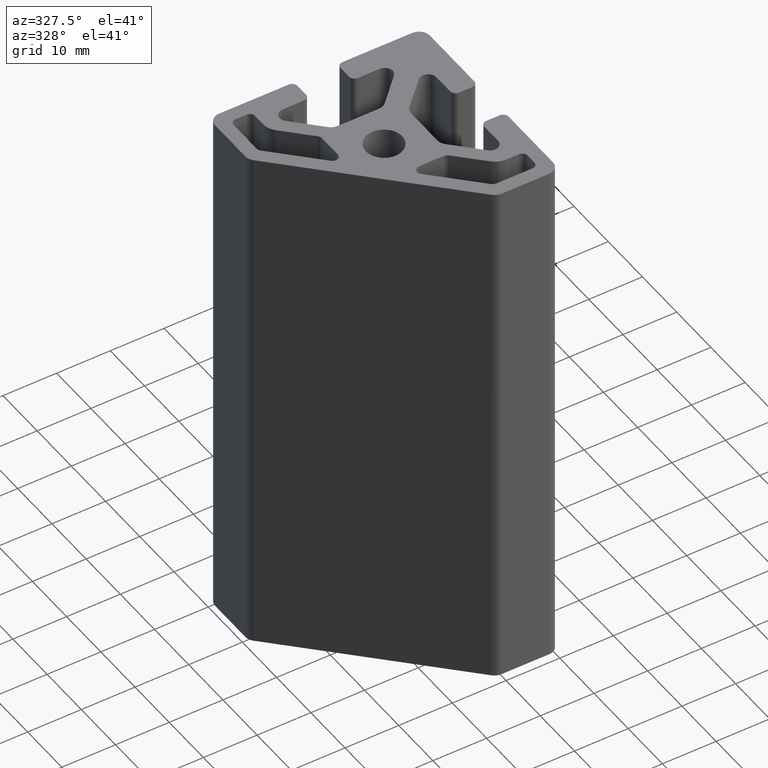
[diagram: clean part render]
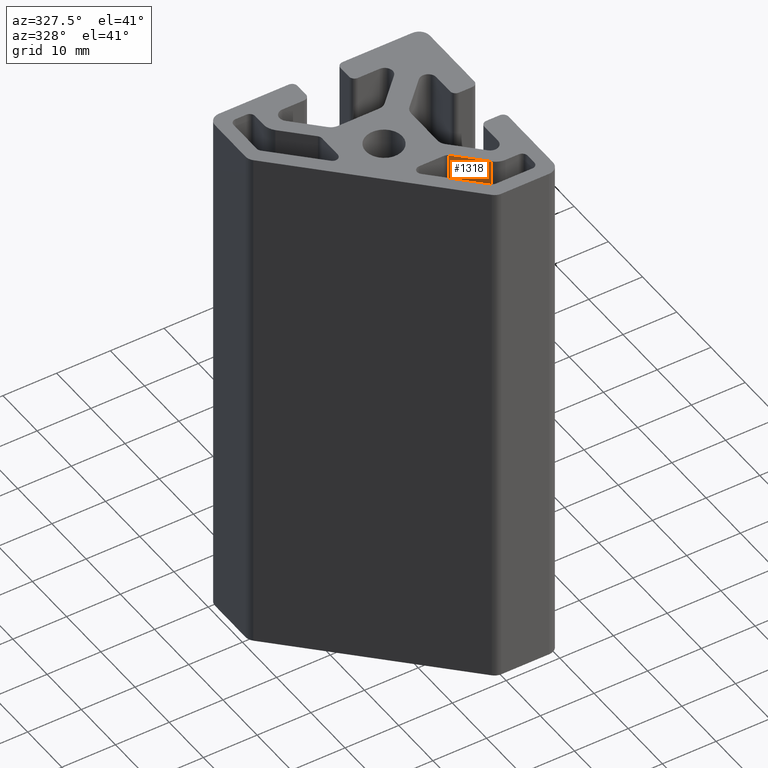
[diagram: same view with one face highlighted and labeled with its STEP entity id]
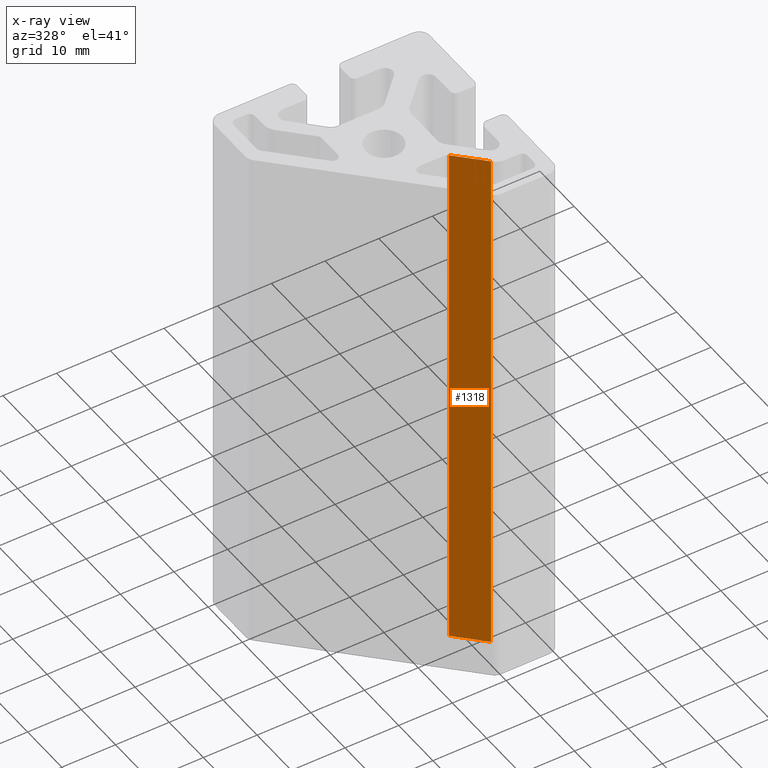
[diagram: x-ray of the same camera — body ghosted, the highlighted face saturated]
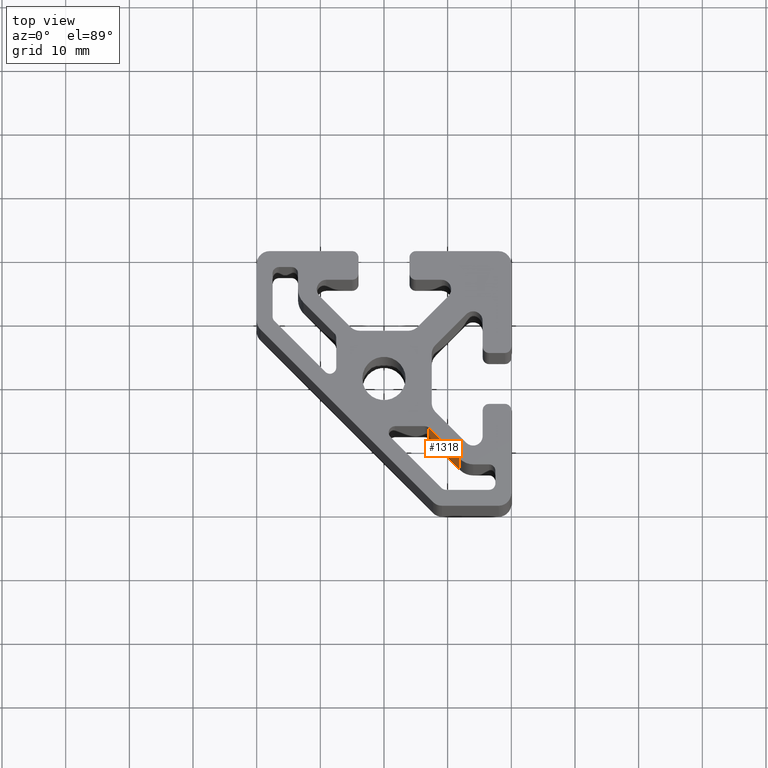
[diagram: same view with one face highlighted and labeled with its STEP entity id]
A machine part, auxiliary view. The second image highlights one B-rep face of the part: STEP entity #1318.
The next image is the same camera in x-ray: the body ghosted, the highlighted face saturated — about 0% of this face is hidden behind the body in this view.
A second angle (top view) of the same face is appended — the face is thin or edge-on in the first view.
In plain terms, the highlighted planar face has unit normal (0.7071, 0.7071, 0).
Its self-contained STEP definition (entity closure, byte-faithful):
#140=FACE_OUTER_BOUND('',#209,.T.);
#209=EDGE_LOOP('',(#931,#932,#933,#934));
#301=LINE('',#2016,#433);
#302=LINE('',#2020,#434);
#303=LINE('',#2022,#435);
#304=LINE('',#2023,#436);
#433=VECTOR('',#1606,100.);
#434=VECTOR('',#1611,6.8284271247462);
#435=VECTOR('',#1612,100.);
#436=VECTOR('',#1613,6.8284271247462);
#565=VERTEX_POINT('',#2013);
#566=VERTEX_POINT('',#2015);
#567=VERTEX_POINT('',#2019);
#568=VERTEX_POINT('',#2021);
#714=EDGE_CURVE('',#566,#565,#301,.T.);
#716=EDGE_CURVE('',#567,#565,#302,.T.);
#717=EDGE_CURVE('',#568,#567,#303,.T.);
#718=EDGE_CURVE('',#566,#568,#304,.T.);
#931=ORIENTED_EDGE('',*,*,#716,.F.);
#932=ORIENTED_EDGE('',*,*,#717,.F.);
#933=ORIENTED_EDGE('',*,*,#718,.F.);
#934=ORIENTED_EDGE('',*,*,#714,.T.);
#1275=PLANE('',#1405);
#1318=ADVANCED_FACE('',(#140),#1275,.F.);
#1405=AXIS2_PLACEMENT_3D('',#2018,#1609,#1610);
#1606=DIRECTION('',(0.,0.,1.));
#1609=DIRECTION('center_axis',(0.707106781186547,0.707106781186548,0.));
#1610=DIRECTION('ref_axis',(-0.707106781186548,0.707106781186547,0.));
#1611=DIRECTION('',(0.707106781186548,-0.707106781186547,0.));
#1612=DIRECTION('',(0.,0.,1.));
#1613=DIRECTION('',(-0.707106781186548,0.707106781186547,0.));
#2013=CARTESIAN_POINT('',(11.9142135623731,-12.6213203435596,100.));
#2015=CARTESIAN_POINT('',(11.9142135623731,-12.6213203435596,0.));
#2016=CARTESIAN_POINT('',(11.9142135623731,-12.6213203435596,0.));
#2018=CARTESIAN_POINT('Origin',(11.9142135623731,-12.6213203435596,0.));
#2019=CARTESIAN_POINT('',(7.0857864376269,-7.79289321881344,100.));
#2020=CARTESIAN_POINT('',(5.78033008588991,-6.48743686707646,100.));
#2021=CARTESIAN_POINT('',(7.0857864376269,-7.79289321881344,0.));
#2022=CARTESIAN_POINT('',(7.0857864376269,-7.79289321881344,0.));
#2023=CARTESIAN_POINT('',(5.78033008588991,-6.48743686707646,0.));